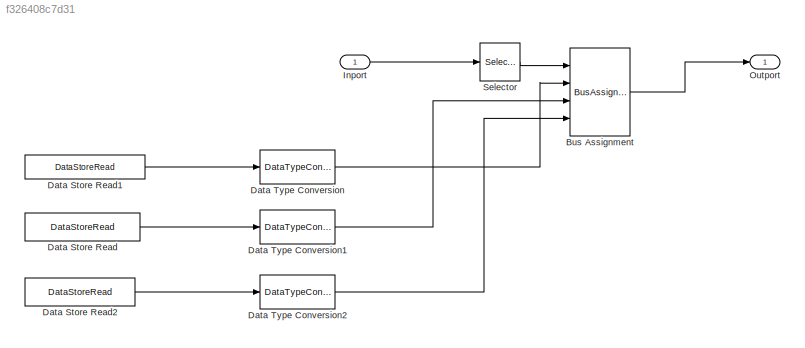
MODEL slx_f326408c7d31
KIND model
BLOCK [BusAssignment] Bus Assignment
  AssignedSignals = btn,com,rmt
  Ports = [4, 1]
BLOCK [DataStoreRead] Data Store Read
  DataStoreElements = sys_regs.inputs(3:7)
  DataStoreName = sys_regs
  IndexOptions = Index vector (dialog)
  Indices = 1
  OutputSizes = 1
  Ports = [0, 1]
BLOCK [DataStoreRead] Data Store Read1
  DataStoreElements = sys_regs.inputs(1:2)
  DataStoreName = sys_regs
  IndexOptions = Index vector (dialog)
  Indices = 1
  OutputSizes = 1
  Ports = [0, 1]
BLOCK [DataStoreRead] Data Store Read2
  DataStoreElements = sys_regs.inputs(8:12)
  DataStoreName = sys_regs
  IndexOptions = Index vector (dialog)
  Indices = 1
  OutputSizes = 1
  Ports = [0, 1]
BLOCK [DataTypeConversion] Data Type Conversion
  OutDataTypeStr = int8
  RndMeth = Floor
  SaturateOnIntegerOverflow = off
BLOCK [DataTypeConversion] Data Type Conversion1
  OutDataTypeStr = int8
  RndMeth = Floor
  SaturateOnIntegerOverflow = off
BLOCK [DataTypeConversion] Data Type Conversion2
  OutDataTypeStr = int8
  RndMeth = Floor
  SaturateOnIntegerOverflow = off
BLOCK [Inport] Inport
  BusOutputAsStruct = on
  Interpolate = off
  OutDataTypeStr = Bus: ch_signal
  PortDimensions = 4
BLOCK [Outport] Outport
BLOCK [Selector] Selector
  IndexMode = Zero-based
  IndexOptions = Index vector (dialog)
  Indices = [0]
  InputPortWidth = 4
  OutputSizes = 1
  Ports = [1, 1]
LINE Bus Assignment:1 -> Outport:1
LINE Data Store Read1:1 -> Data Type Conversion:1
LINE Data Store Read2:1 -> Data Type Conversion2:1
LINE Data Store Read:1 -> Data Type Conversion1:1
LINE Data Type Conversion1:1 -> Bus Assignment:3
LINE Data Type Conversion2:1 -> Bus Assignment:4
LINE Data Type Conversion:1 -> Bus Assignment:2
LINE Inport:1 -> Selector:1
LINE Selector:1 -> Bus Assignment:1
